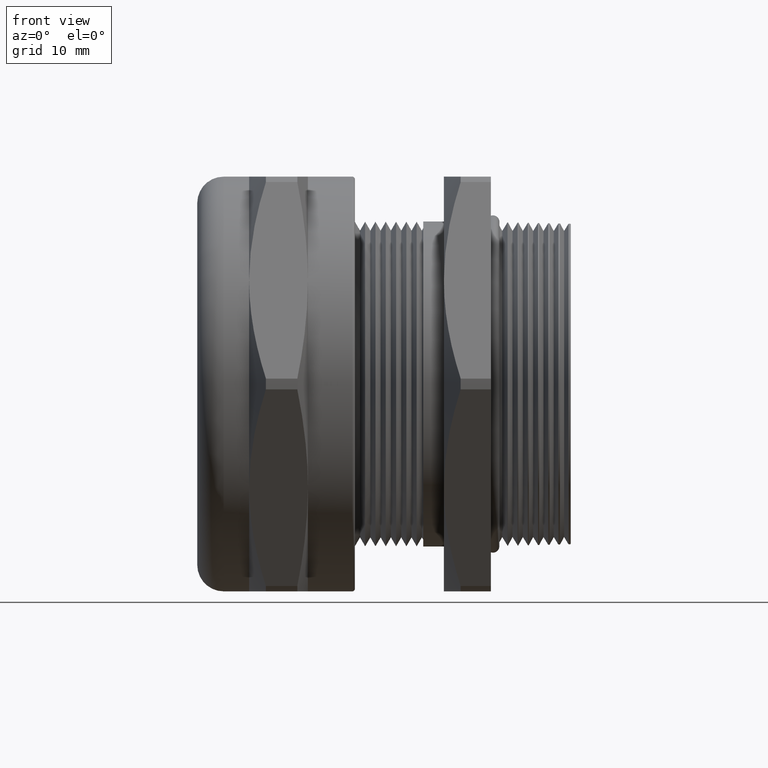
[diagram: clean part render]
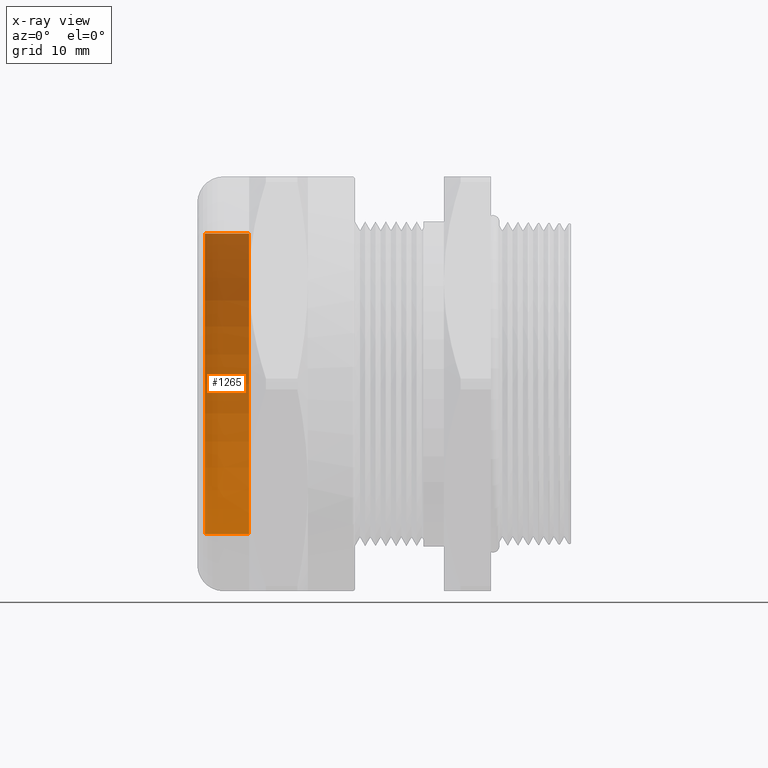
[diagram: x-ray — body ghosted, one internal face saturated and labeled with its STEP entity id]
A machine part, front view, then the same camera in x-ray: the body is ghosted and one INTERNAL B-rep face — a face not visible from any outside direction — is saturated and labeled: STEP entity #1265.
In plain terms, the highlighted cylindrical surface (partial cylindrical patch) has radius 14.8241 mm, axis along (1, 0, 0).
Its self-contained STEP definition (entity closure, byte-faithful):
#1260 = VERTEX_POINT ( 'NONE', #3626 ) ;
#1261 = VERTEX_POINT ( 'NONE', #3625 ) ;
#1265 = ADVANCED_FACE ( 'NONE', ( #3617 ), #3681, .T. ) ;
#1266 = EDGE_LOOP ( 'NONE', ( #1267, #1268, #1275, #1279 ) ) ;
#1267 = ORIENTED_EDGE ( 'NONE', *, *, #1289, .T. ) ;
#1268 = ORIENTED_EDGE ( 'NONE', *, *, #1273, .T. ) ;
#1273 = EDGE_CURVE ( 'NONE', #1260, #1274, #3670, .T. ) ;
#1274 = VERTEX_POINT ( 'NONE', #3662 ) ;
#1275 = ORIENTED_EDGE ( 'NONE', *, *, #1276, .F. ) ;
#1276 = EDGE_CURVE ( 'NONE', #1278, #1274, #3661, .T. ) ;
#1278 = VERTEX_POINT ( 'NONE', #3651 ) ;
#1279 = ORIENTED_EDGE ( 'NONE', *, *, #1280, .F. ) ;
#1280 = EDGE_CURVE ( 'NONE', #1261, #1278, #3717, .T. ) ;
#1289 = EDGE_CURVE ( 'NONE', #1261, #1260, #3698, .T. ) ;
#3616 = CARTESIAN_POINT ( 'NONE',  ( 0.5452584728366800500, 0.0000000000000000000, 0.0000000000000000000 ) ) ;
#3617 = FACE_OUTER_BOUND ( 'NONE', #1266, .T. ) ;
#3625 = CARTESIAN_POINT ( 'NONE',  ( -0.6949999999999998400, 0.0000000000000000000, -0.5836250000000000600 ) ) ;
#3626 = CARTESIAN_POINT ( 'NONE',  ( -0.6949999999999998400, 7.147344881523741700E-017, 0.5836250000000001700 ) ) ;
#3651 = CARTESIAN_POINT ( 'NONE',  ( -0.5234999999999998500, 0.0000000000000000000, -0.5836249999999999500 ) ) ;
#3657 = DIRECTION ( 'NONE',  ( 0.0000000000000000000, 0.0000000000000000000, -1.000000000000000000 ) ) ;
#3658 = DIRECTION ( 'NONE',  ( 1.000000000000000000, 0.0000000000000000000, 0.0000000000000000000 ) ) ;
#3659 = CARTESIAN_POINT ( 'NONE',  ( -0.5234999999999998500, 0.0000000000000000000, 0.0000000000000000000 ) ) ;
#3660 = AXIS2_PLACEMENT_3D ( 'NONE', #3659, #3658, #3657 ) ;
#3661 = CIRCLE ( 'NONE', #3660, 0.5836249999999999500 ) ;
#3662 = CARTESIAN_POINT ( 'NONE',  ( -0.5234999999999998500, 7.147344881523739300E-017, 0.5836249999999999500 ) ) ;
#3663 = DIRECTION ( 'NONE',  ( 1.000000000000000000, 0.0000000000000000000, 0.0000000000000000000 ) ) ;
#3664 = VECTOR ( 'NONE', #3663, 39.37007874015748100 ) ;
#3665 = CARTESIAN_POINT ( 'NONE',  ( 0.5452584728366800500, 7.147344881523739300E-017, 0.5836249999999999500 ) ) ;
#3670 = LINE ( 'NONE', #3665, #3664 ) ;
#3677 = DIRECTION ( 'NONE',  ( 0.0000000000000000000, 0.0000000000000000000, -1.000000000000000000 ) ) ;
#3678 = DIRECTION ( 'NONE',  ( 1.000000000000000000, 0.0000000000000000000, 0.0000000000000000000 ) ) ;
#3679 = AXIS2_PLACEMENT_3D ( 'NONE', #3616, #3678, #3677 ) ;
#3681 = CYLINDRICAL_SURFACE ( 'NONE', #3679, 0.5836249999999999500 ) ;
#3694 = DIRECTION ( 'NONE',  ( 0.0000000000000000000, 0.0000000000000000000, -1.000000000000000000 ) ) ;
#3695 = DIRECTION ( 'NONE',  ( 1.000000000000000000, 0.0000000000000000000, 0.0000000000000000000 ) ) ;
#3696 = CARTESIAN_POINT ( 'NONE',  ( -0.6949999999999998400, 0.0000000000000000000, 0.0000000000000000000 ) ) ;
#3697 = AXIS2_PLACEMENT_3D ( 'NONE', #3696, #3695, #3694 ) ;
#3698 = CIRCLE ( 'NONE', #3697, 0.5836250000000000600 ) ;
#3714 = DIRECTION ( 'NONE',  ( 1.000000000000000000, 0.0000000000000000000, 0.0000000000000000000 ) ) ;
#3715 = VECTOR ( 'NONE', #3714, 39.37007874015748100 ) ;
#3716 = CARTESIAN_POINT ( 'NONE',  ( 0.5452584728366800500, 0.0000000000000000000, -0.5836249999999999500 ) ) ;
#3717 = LINE ( 'NONE', #3716, #3715 ) ;